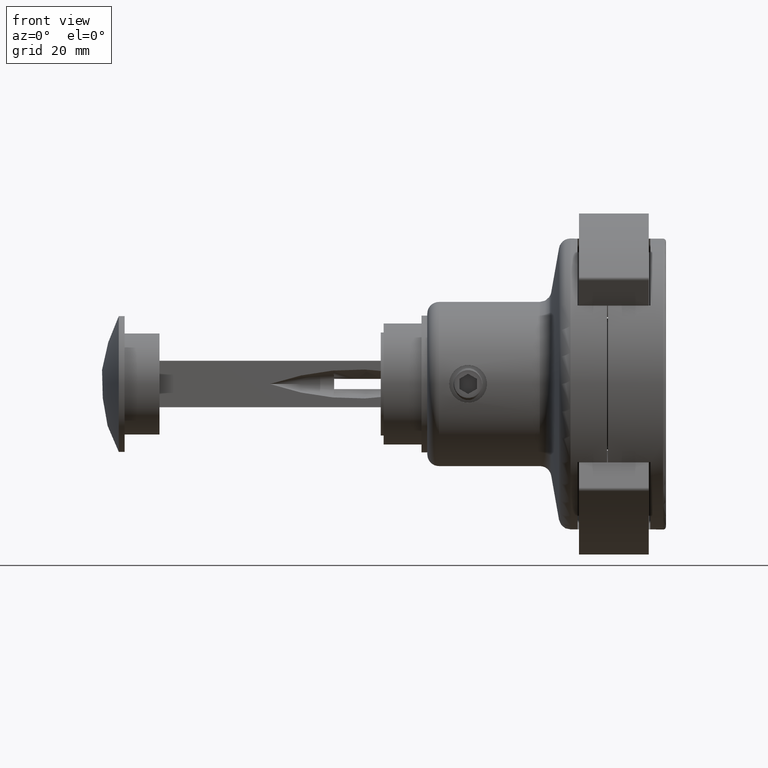
[diagram: clean part render]
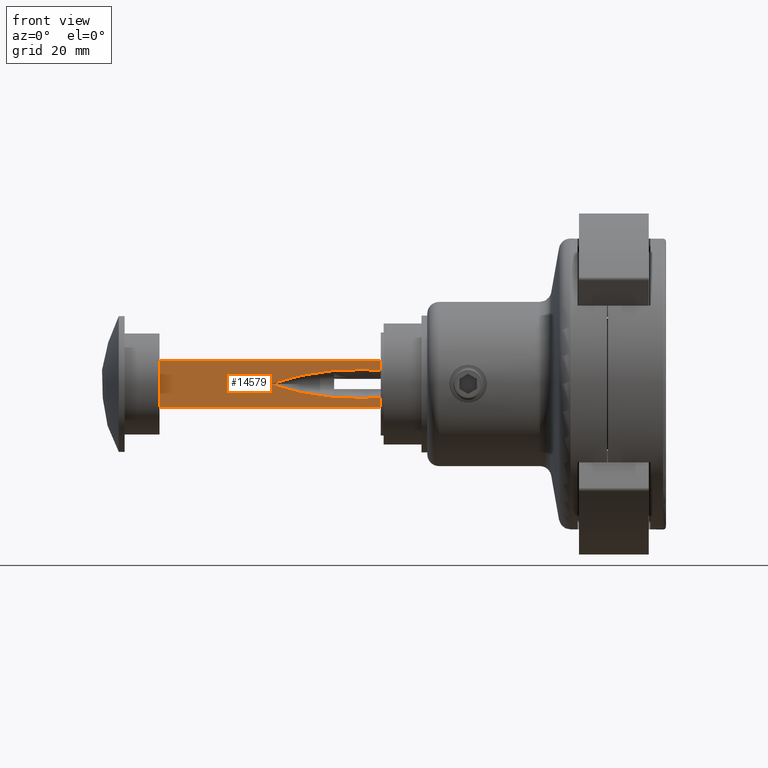
[diagram: same view with one face highlighted and labeled with its STEP entity id]
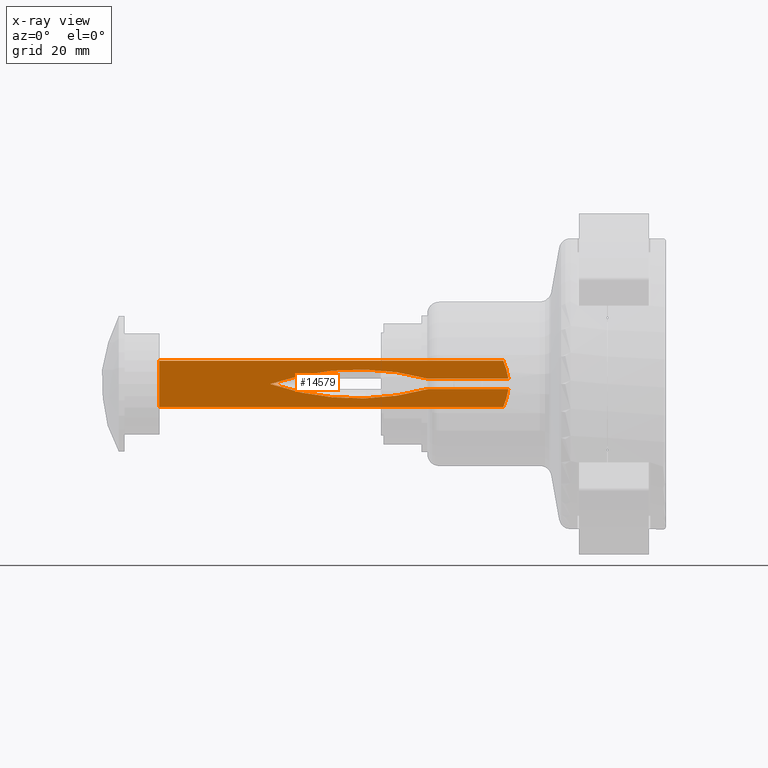
[diagram: x-ray of the same camera — body ghosted, the highlighted face saturated]
A machine part, front view. The second image highlights one B-rep face of the part: STEP entity #14579.
The next image is the same camera in x-ray: the body ghosted, the highlighted face saturated — about 0% of this face is hidden behind the body in this view.
In plain terms, the highlighted planar face has unit normal (0, 1, 0).
Its self-contained STEP definition (entity closure, byte-faithful):
#58 = CARTESIAN_POINT ( 'NONE',  ( 45.00000000000000000, -4.000000000000000888, 4.000000000000000000 ) ) ;
#111 = ORIENTED_EDGE ( 'NONE', *, *, #14287, .T. ) ;
#181 = VECTOR ( 'NONE', #6756, 1000.000000000000000 ) ;
#1340 = EDGE_CURVE ( 'NONE', #4192, #14634, #9136, .T. ) ;
#1542 = CARTESIAN_POINT ( 'NONE',  ( -15.00000000000000000, -4.000000000000001776, -4.000000000000000000 ) ) ;
#2037 = CARTESIAN_POINT ( 'NONE',  ( 44.43978035802832238, -4.000000000000000888, -2.983355208092772326 ) ) ;
#2718 = VECTOR ( 'NONE', #8019, 1000.000000000000000 ) ;
#2740 = ORIENTED_EDGE ( 'NONE', *, *, #7081, .F. ) ;
#2882 = PLANE ( 'NONE',  #8545 ) ;
#3235 = DIRECTION ( 'NONE',  ( 0.000000000000000000, 0.000000000000000000, 1.000000000000000000 ) ) ;
#3310 = ORIENTED_EDGE ( 'NONE', *, *, #6331, .T. ) ;
#3324 = ORIENTED_EDGE ( 'NONE', *, *, #1340, .F. ) ;
#3515 = CARTESIAN_POINT ( 'NONE',  ( 44.04341475304760678, -4.000000000000000888, -4.000000000000000888 ) ) ;
#3710 = CARTESIAN_POINT ( 'NONE',  ( 44.94539141800778737, -4.000000000000028422, -0.8750000000000004441 ) ) ;
#3821 = DIRECTION ( 'NONE',  ( 0.000000000000000000, -0.000000000000000000, 1.000000000000000000 ) ) ;
#3923 = DIRECTION ( 'NONE',  ( 1.000000000000000000, -0.000000000000000000, -0.000000000000000000 ) ) ;
#4001 = CARTESIAN_POINT ( 'NONE',  ( 44.44032321602043822, -4.000000000000000000, 2.981996921138053924 ) ) ;
#4114 = DIRECTION ( 'NONE',  ( 1.000000000000000000, -0.000000000000000000, -0.000000000000000000 ) ) ;
#4119 = LINE ( 'NONE', #4421, #181 ) ;
#4192 = VERTEX_POINT ( 'NONE', #4605 ) ;
#4216 = CARTESIAN_POINT ( 'NONE',  ( 44.94539141800778737, -4.000000000000028422, -0.8750000000000004441 ) ) ;
#4273 = CARTESIAN_POINT ( 'NONE',  ( 44.75476316776837393, -4.000000000000000000, -1.942875093181763546 ) ) ;
#4421 = CARTESIAN_POINT ( 'NONE',  ( -15.00000000000000000, -4.000000000000001776, -4.000000000000000000 ) ) ;
#4605 = CARTESIAN_POINT ( 'NONE',  ( 31.15203172313167457, -4.000000000000181188, -0.8750000000000004441 ) ) ;
#4841 = EDGE_CURVE ( 'NONE', #13724, #10156, #11957, .T. ) ;
#5033 = CARTESIAN_POINT ( 'NONE',  ( 44.94539141800778737, -4.000000000000000888, 0.8749999999999993339 ) ) ;
#5108 = DIRECTION ( 'NONE',  ( -0.000000000000000000, 1.000000000000000000, 0.000000000000000000 ) ) ;
#5464 = AXIS2_PLACEMENT_3D ( 'NONE', #11147, #8901, #3235 ) ;
#5694 = DIRECTION ( 'NONE',  ( -1.000000000000000000, -0.000000000000000000, -0.000000000000000000 ) ) ;
#5739 = CARTESIAN_POINT ( 'NONE',  ( 15.00000000000000000, -3.999999999999999112, -0.8750000000000004441 ) ) ;
#5823 = VECTOR ( 'NONE', #5694, 1000.000000000000000 ) ;
#6176 = EDGE_CURVE ( 'NONE', #10002, #13105, #10724, .T. ) ;
#6331 = EDGE_CURVE ( 'NONE', #13724, #14436, #13948, .T. ) ;
#6732 = VERTEX_POINT ( 'NONE', #1542 ) ;
#6756 = DIRECTION ( 'NONE',  ( 0.000000000000000000, 0.000000000000000000, 1.000000000000000000 ) ) ;
#6806 = CARTESIAN_POINT ( 'NONE',  ( 44.04341475304761389, -4.000000000000000888, 4.000000000000000000 ) ) ;
#6877 = CARTESIAN_POINT ( 'NONE',  ( 44.94539141800778737, -4.000000000000000888, 0.8749999999999993339 ) ) ;
#6955 = CARTESIAN_POINT ( 'NONE',  ( 45.00000000000000000, -4.000000000000000888, -4.000000000000000000 ) ) ;
#6991 = ORIENTED_EDGE ( 'NONE', *, *, #13553, .F. ) ;
#7056 = CARTESIAN_POINT ( 'NONE',  ( -15.00000000000000000, -4.000000000000001776, 4.000000000000000000 ) ) ;
#7081 = EDGE_CURVE ( 'NONE', #6732, #14436, #4119, .T. ) ;
#7153 = DIRECTION ( 'NONE',  ( -0.000000000000000000, 1.000000000000000000, 0.000000000000000000 ) ) ;
#7213 = CIRCLE ( 'NONE', #11707, 46.25000000000000711 ) ;
#7216 = ORIENTED_EDGE ( 'NONE', *, *, #4841, .F. ) ;
#7355 = CARTESIAN_POINT ( 'NONE',  ( 45.00000000000000000, -4.000000000000000888, 4.000000000000000000 ) ) ;
#7540 = CARTESIAN_POINT ( 'NONE',  ( 44.24904763687255382, -4.000000000000000888, -3.496304360291873969 ) ) ;
#7639 = CARTESIAN_POINT ( 'NONE',  ( 44.04341475304760678, -4.000000000000000888, -4.000000000000000888 ) ) ;
#7862 = VERTEX_POINT ( 'NONE', #3515 ) ;
#8019 = DIRECTION ( 'NONE',  ( -1.000000000000000000, -0.000000000000000000, -0.000000000000000000 ) ) ;
#8488 = VECTOR ( 'NONE', #4114, 1000.000000000000000 ) ;
#8522 = CARTESIAN_POINT ( 'NONE',  ( 44.04341475304761389, -4.000000000000000888, 4.000000000000000000 ) ) ;
#8545 = AXIS2_PLACEMENT_3D ( 'NONE', #7355, #5108, #3821 ) ;
#8773 = B_SPLINE_CURVE_WITH_KNOTS ( 'NONE', 3,
 ( #3710, #12835, #4273, #2037, #7540, #7639 ),
 .UNSPECIFIED., .F., .F.,
 ( 4, 2, 4 ),
 ( 0.01539246089972624160, 0.01700859266985330423, 0.01862472443998036686 ),
 .UNSPECIFIED. ) ;
#8800 = CARTESIAN_POINT ( 'NONE',  ( 31.15203172313173852, -4.000000000000408562, 0.8749999999999995559 ) ) ;
#8812 = ORIENTED_EDGE ( 'NONE', *, *, #10839, .T. ) ;
#8860 = LINE ( 'NONE', #6955, #5823 ) ;
#8901 = DIRECTION ( 'NONE',  ( -0.000000000000000000, 1.000000000000000000, 0.000000000000000000 ) ) ;
#9136 = LINE ( 'NONE', #5739, #12381 ) ;
#9332 = CARTESIAN_POINT ( 'NONE',  ( 18.99999999999998224, -4.000000000000000888, 43.75000000000002132 ) ) ;
#10002 = VERTEX_POINT ( 'NONE', #14600 ) ;
#10022 = FACE_OUTER_BOUND ( 'NONE', #11194, .T. ) ;
#10156 = VERTEX_POINT ( 'NONE', #6877 ) ;
#10577 = EDGE_CURVE ( 'NONE', #7862, #6732, #8860, .T. ) ;
#10724 = CIRCLE ( 'NONE', #5464, 46.25000000000000711 ) ;
#10816 = CARTESIAN_POINT ( 'NONE',  ( 44.24904486352164668, -4.000000000000000888, 3.496311153586489251 ) ) ;
#10832 = CARTESIAN_POINT ( 'NONE',  ( 15.00000000000000000, -3.999999999999999112, 0.8749999999999995559 ) ) ;
#10839 = EDGE_CURVE ( 'NONE', #13105, #10156, #12616, .T. ) ;
#10969 = ORIENTED_EDGE ( 'NONE', *, *, #10577, .F. ) ;
#11147 = CARTESIAN_POINT ( 'NONE',  ( 19.00000000000000355, -4.000000000000000888, -43.75000000000000711 ) ) ;
#11194 = EDGE_LOOP ( 'NONE', ( #3310, #2740, #10969, #6991, #3324, #111, #11740, #8812, #7216 ) ) ;
#11640 = DIRECTION ( 'NONE',  ( 0.000000000000000000, 0.000000000000000000, 1.000000000000000000 ) ) ;
#11707 = AXIS2_PLACEMENT_3D ( 'NONE', #9332, #7153, #11640 ) ;
#11740 = ORIENTED_EDGE ( 'NONE', *, *, #6176, .T. ) ;
#11957 = B_SPLINE_CURVE_WITH_KNOTS ( 'NONE', 3,
 ( #8522, #10816, #4001, #11962, #14096, #5033 ),
 .UNSPECIFIED., .F., .F.,
 ( 4, 2, 4 ),
 ( 0.01039468755066288302, 0.01202249215247777440, 0.01365029675429266579 ),
 .UNSPECIFIED. ) ;
#11962 = CARTESIAN_POINT ( 'NONE',  ( 44.75593809106884891, -4.000000000000000888, 1.938556675108113803 ) ) ;
#12381 = VECTOR ( 'NONE', #3923, 1000.000000000000000 ) ;
#12616 = LINE ( 'NONE', #10832, #8488 ) ;
#12835 = CARTESIAN_POINT ( 'NONE',  ( 44.87873634941627188, -4.000000000000000888, -1.415251060417822782 ) ) ;
#13105 = VERTEX_POINT ( 'NONE', #8800 ) ;
#13553 = EDGE_CURVE ( 'NONE', #14634, #7862, #8773, .T. ) ;
#13724 = VERTEX_POINT ( 'NONE', #6806 ) ;
#13948 = LINE ( 'NONE', #58, #2718 ) ;
#14096 = CARTESIAN_POINT ( 'NONE',  ( 44.87921994223835043, -4.000000000000000888, 1.411331455495214104 ) ) ;
#14287 = EDGE_CURVE ( 'NONE', #4192, #10002, #7213, .T. ) ;
#14436 = VERTEX_POINT ( 'NONE', #7056 ) ;
#14579 = ADVANCED_FACE ( 'NONE', ( #10022 ), #2882, .F. ) ;
#14600 = CARTESIAN_POINT ( 'NONE',  ( 3.999999999999996447, -4.000000000000000888, -8.673617379884035472E-16 ) ) ;
#14634 = VERTEX_POINT ( 'NONE', #4216 ) ;